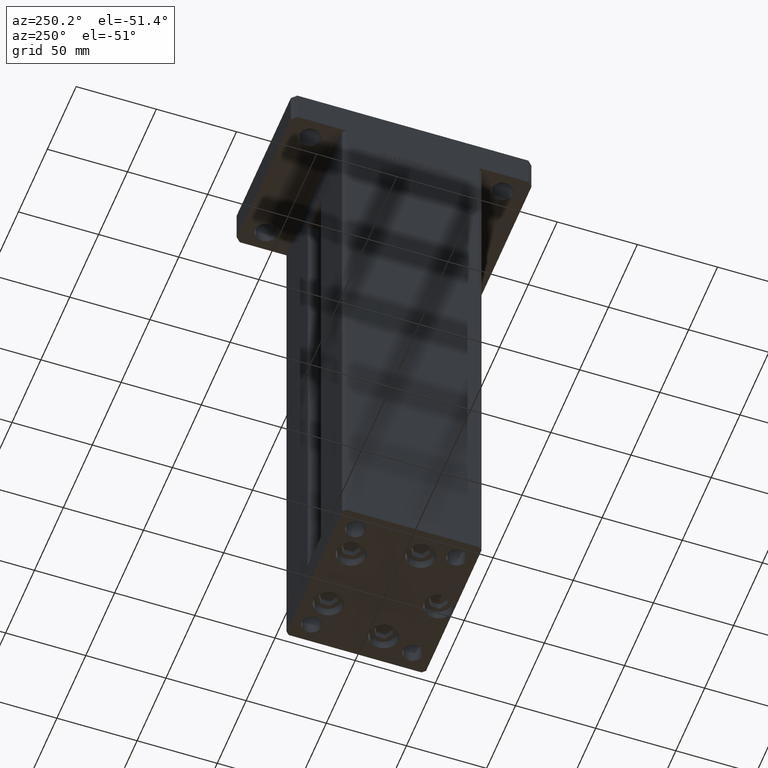
[diagram: clean part render]
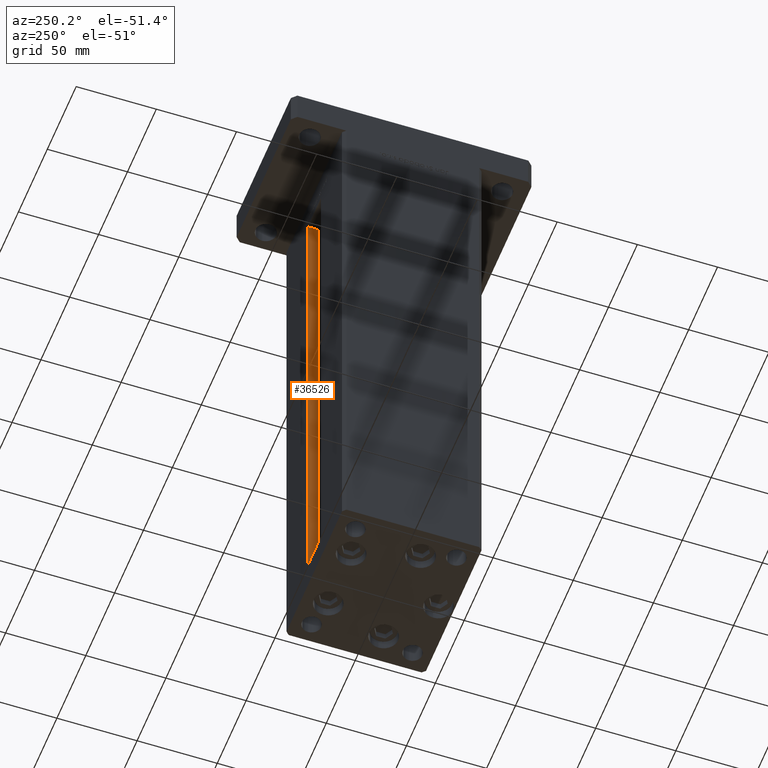
[diagram: same view with one face highlighted and labeled with its STEP entity id]
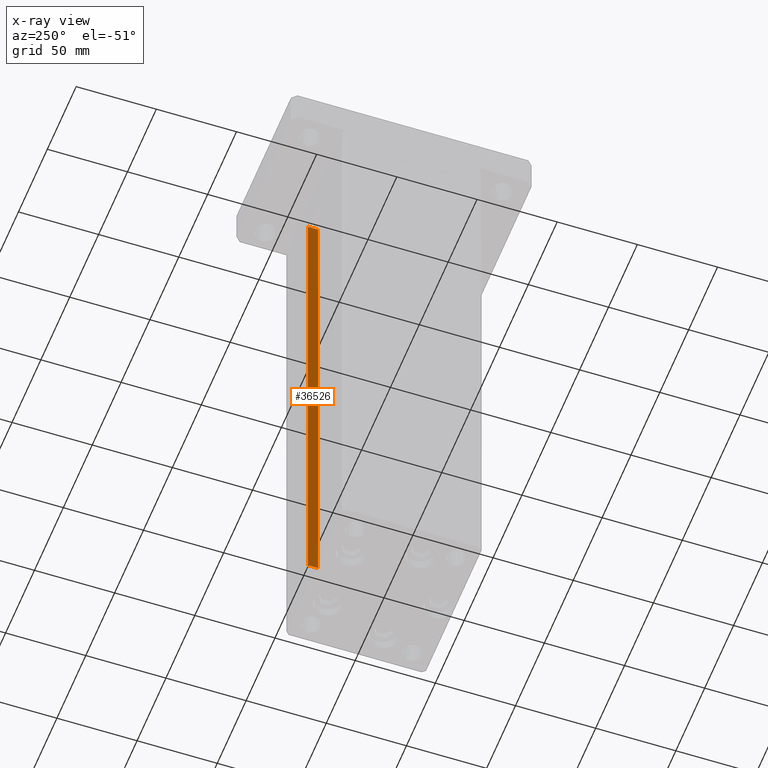
[diagram: x-ray of the same camera — body ghosted, the highlighted face saturated]
A machine part, auxiliary view. The second image highlights one B-rep face of the part: STEP entity #36526.
The next image is the same camera in x-ray: the body ghosted, the highlighted face saturated — about 0% of this face is hidden behind the body in this view.
In plain terms, the highlighted planar face has unit normal (1, 0, 0).
Its self-contained STEP definition (entity closure, byte-faithful):
#1241 = LINE ( 'NONE', #5316, #45139 ) ;
#1986 = FACE_OUTER_BOUND ( 'NONE', #52427, .T. ) ;
#2247 = DIRECTION ( 'NONE',  ( 1.000000000000000000, -0.000000000000000000, 0.000000000000000000 ) ) ;
#5316 = CARTESIAN_POINT ( 'NONE',  ( 11.24999999999999822, 0.000000000000000000, 318.5000000000000000 ) ) ;
#6131 = EDGE_CURVE ( 'NONE', #31388, #45068, #40745, .T. ) ;
#6782 = LINE ( 'NONE', #45258, #18027 ) ;
#7697 = EDGE_CURVE ( 'NONE', #31324, #22178, #6782, .T. ) ;
#11536 = CARTESIAN_POINT ( 'NONE',  ( 11.24999999999999822, 43.50000000000000000, 0.000000000000000000 ) ) ;
#12690 = CARTESIAN_POINT ( 'NONE',  ( 11.24999999999999822, 43.50000000000000000, 0.000000000000000000 ) ) ;
#13304 = ORIENTED_EDGE ( 'NONE', *, *, #40449, .F. ) ;
#13517 = CARTESIAN_POINT ( 'NONE',  ( 11.24999999999999822, 36.99999999999999289, 318.5000000000000000 ) ) ;
#15014 = DIRECTION ( 'NONE',  ( 0.000000000000000000, 1.000000000000000000, 0.000000000000000000 ) ) ;
#18027 = VECTOR ( 'NONE', #40087, 1000.000000000000000 ) ;
#18163 = ORIENTED_EDGE ( 'NONE', *, *, #7697, .T. ) ;
#18606 = CARTESIAN_POINT ( 'NONE',  ( 11.24999999999999822, 36.99999999999999289, 0.000000000000000000 ) ) ;
#19844 = AXIS2_PLACEMENT_3D ( 'NONE', #18606, #2247, #35261 ) ;
#22178 = VERTEX_POINT ( 'NONE', #13517 ) ;
#24366 = DIRECTION ( 'NONE',  ( -0.000000000000000000, -0.000000000000000000, 1.000000000000000000 ) ) ;
#28402 = VECTOR ( 'NONE', #15014, 1000.000000000000000 ) ;
#29276 = ORIENTED_EDGE ( 'NONE', *, *, #6131, .F. ) ;
#29924 = EDGE_CURVE ( 'NONE', #31324, #31388, #42898, .T. ) ;
#30161 = DIRECTION ( 'NONE',  ( -0.000000000000000000, -1.000000000000000000, 0.000000000000000000 ) ) ;
#31324 = VERTEX_POINT ( 'NONE', #45180 ) ;
#31388 = VERTEX_POINT ( 'NONE', #12690 ) ;
#34938 = ORIENTED_EDGE ( 'NONE', *, *, #29924, .F. ) ;
#35261 = DIRECTION ( 'NONE',  ( 0.000000000000000000, 0.000000000000000000, -1.000000000000000000 ) ) ;
#36526 = ADVANCED_FACE ( 'NONE', ( #1986 ), #51634, .F. ) ;
#38942 = CARTESIAN_POINT ( 'NONE',  ( 11.24999999999999112, 43.50000000000000000, 318.5000000000000000 ) ) ;
#40087 = DIRECTION ( 'NONE',  ( -0.000000000000000000, -0.000000000000000000, 1.000000000000000000 ) ) ;
#40449 = EDGE_CURVE ( 'NONE', #45068, #22178, #1241, .T. ) ;
#40745 = LINE ( 'NONE', #11536, #45967 ) ;
#42898 = LINE ( 'NONE', #48290, #28402 ) ;
#45068 = VERTEX_POINT ( 'NONE', #38942 ) ;
#45139 = VECTOR ( 'NONE', #30161, 1000.000000000000000 ) ;
#45180 = CARTESIAN_POINT ( 'NONE',  ( 11.24999999999999822, 36.99999999999999289, 0.000000000000000000 ) ) ;
#45258 = CARTESIAN_POINT ( 'NONE',  ( 11.24999999999999822, 36.99999999999999289, 0.000000000000000000 ) ) ;
#45967 = VECTOR ( 'NONE', #24366, 1000.000000000000000 ) ;
#48290 = CARTESIAN_POINT ( 'NONE',  ( 11.24999999999999822, 36.99999999999999289, 0.000000000000000000 ) ) ;
#51634 = PLANE ( 'NONE',  #19844 ) ;
#52427 = EDGE_LOOP ( 'NONE', ( #29276, #34938, #18163, #13304 ) ) ;